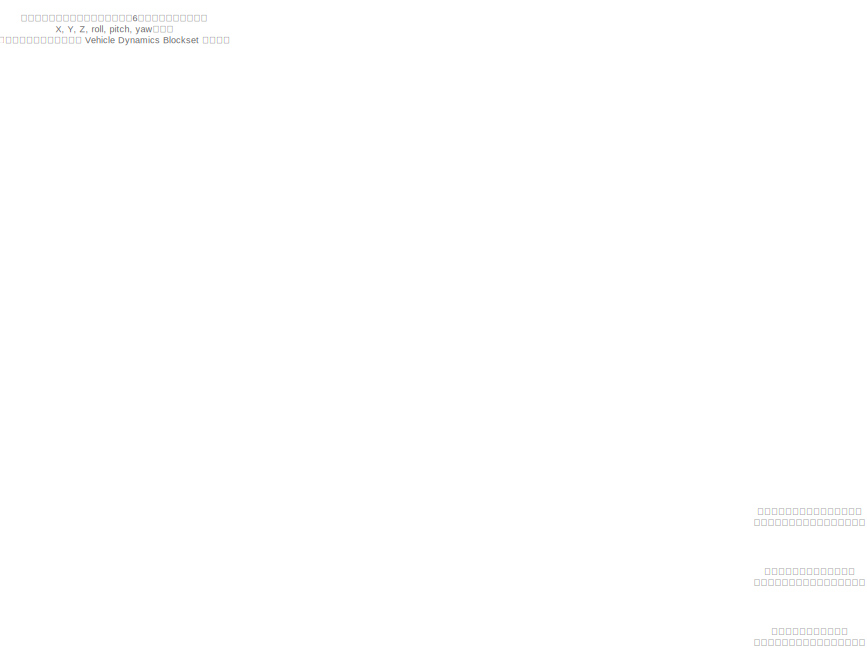
[diagram: root canvas - part 1/4, top left region]
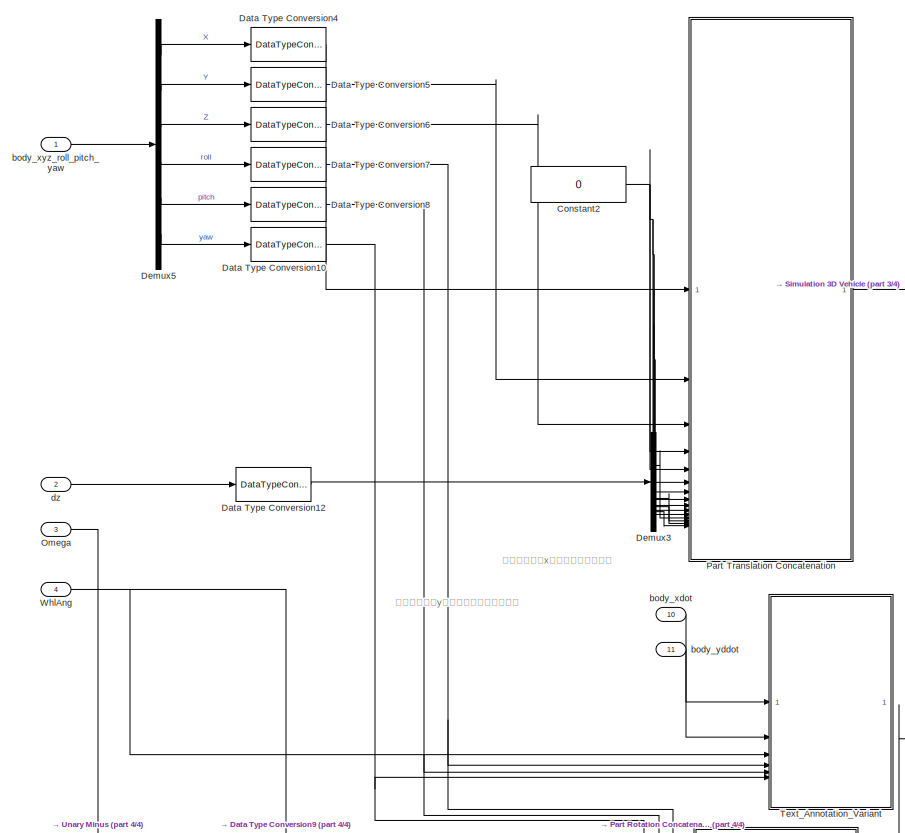
[diagram: root canvas - part 2/4, central region]
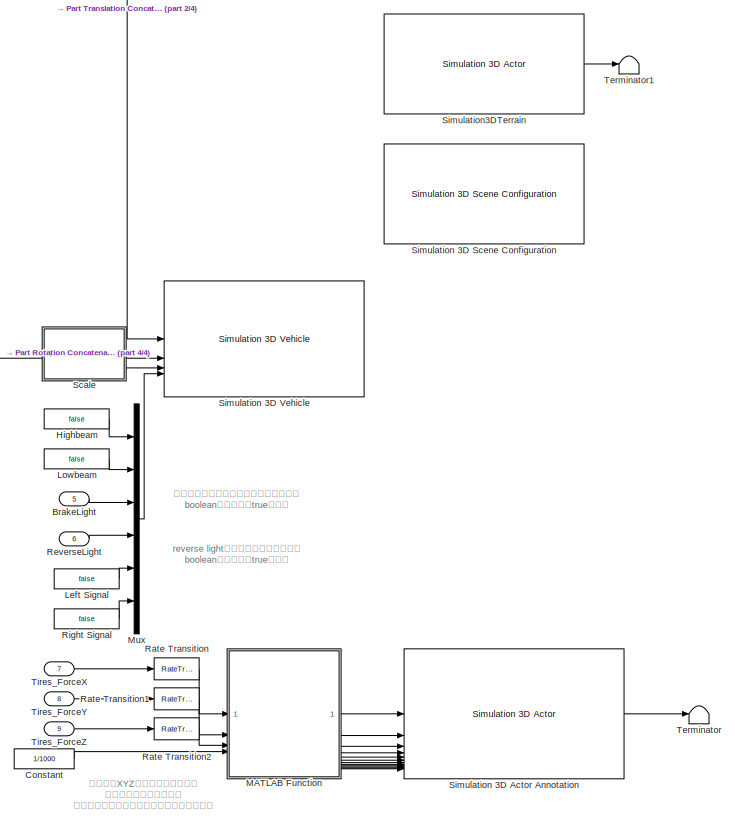
[diagram: root canvas - part 3/4, middle right region]
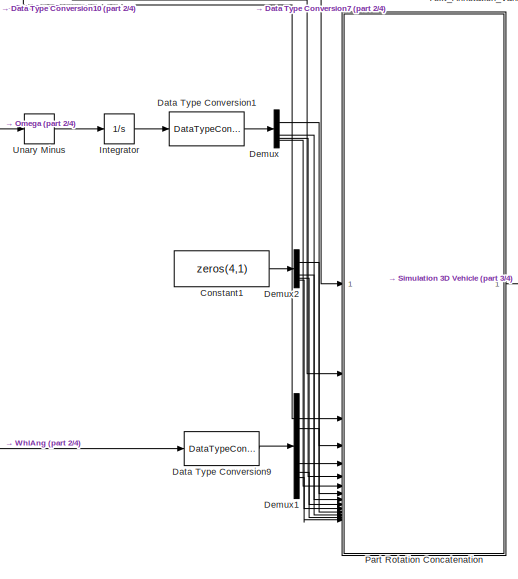
[diagram: root canvas - part 4/4, bottom center region]
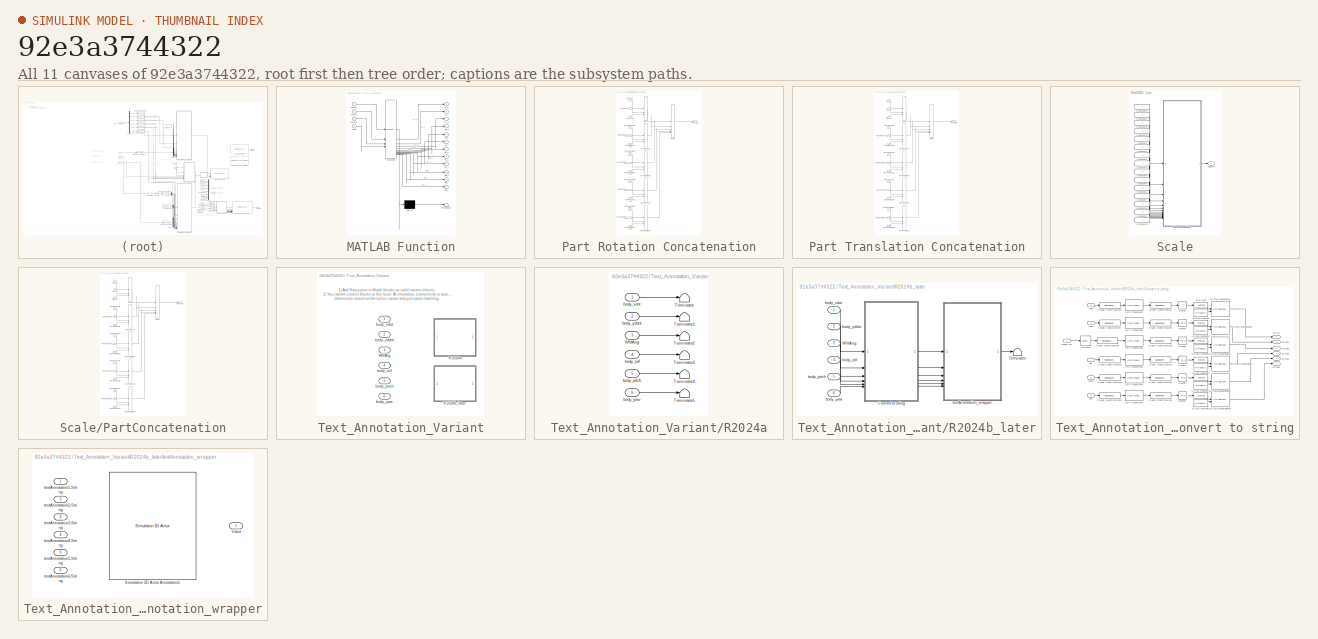
[diagram: thumbnail index - all 11 canvases of the model, root first then tree order]
MODEL slx_92e3a3744322
KIND model
CONFIG AbsTol = auto
CONFIG EnableMultiTasking = off
CONFIG FixedStep = timeStep
CONFIG MaxStep = auto
CONFIG MinStep = auto
CONFIG RelTol = 1e-3
CONFIG SampleTimeConstraint = Unconstrained
CONFIG SolverName = VariableStepAuto
CONFIG StartTime = 0
CONFIG StopTime = 20
BLOCK [Inport] BrakeLight
  OutDataTypeStr = boolean
  Port = 5
BLOCK [Constant] Constant
  Value = 1/1000
BLOCK [Constant] Constant1
  OutDataTypeStr = single
  Value = zeros(4,1)
BLOCK [Constant] Constant2
  OutDataTypeStr = single
  Value = 0
BLOCK [DataTypeConversion] Data Type Conversion1
  OutDataTypeStr = single
  RndMeth = Floor
  SaturateOnIntegerOverflow = off
BLOCK [DataTypeConversion] Data Type Conversion10
  OutDataTypeStr = single
  RndMeth = Floor
  SaturateOnIntegerOverflow = off
BLOCK [DataTypeConversion] Data Type Conversion12
  OutDataTypeStr = single
  RndMeth = Floor
  SaturateOnIntegerOverflow = off
BLOCK [DataTypeConversion] Data Type Conversion4
  OutDataTypeStr = single
  RndMeth = Floor
  SaturateOnIntegerOverflow = off
BLOCK [DataTypeConversion] Data Type Conversion5
  OutDataTypeStr = single
  RndMeth = Floor
  SaturateOnIntegerOverflow = off
BLOCK [DataTypeConversion] Data Type Conversion6
  OutDataTypeStr = single
  RndMeth = Floor
  SaturateOnIntegerOverflow = off
BLOCK [DataTypeConversion] Data Type Conversion7
  OutDataTypeStr = single
  RndMeth = Floor
  SaturateOnIntegerOverflow = off
BLOCK [DataTypeConversion] Data Type Conversion8
  OutDataTypeStr = single
  RndMeth = Floor
  SaturateOnIntegerOverflow = off
BLOCK [DataTypeConversion] Data Type Conversion9
  OutDataTypeStr = single
  RndMeth = Floor
  SaturateOnIntegerOverflow = off
BLOCK [Demux] Demux
BLOCK [Demux] Demux1
BLOCK [Demux] Demux2
BLOCK [Demux] Demux3
BLOCK [Demux] Demux5
  Outputs = 6
BLOCK [Constant] Highbeam
  Value = false
BLOCK [Integrator] Integrator
  WrapState = on
  WrappedStateLowerValue = 0
  WrappedStateUpperValue = 2*pi
  ZeroCross = off
BLOCK [Constant] Left Signal
  Value = false
BLOCK [Constant] Lowbeam
  Value = false
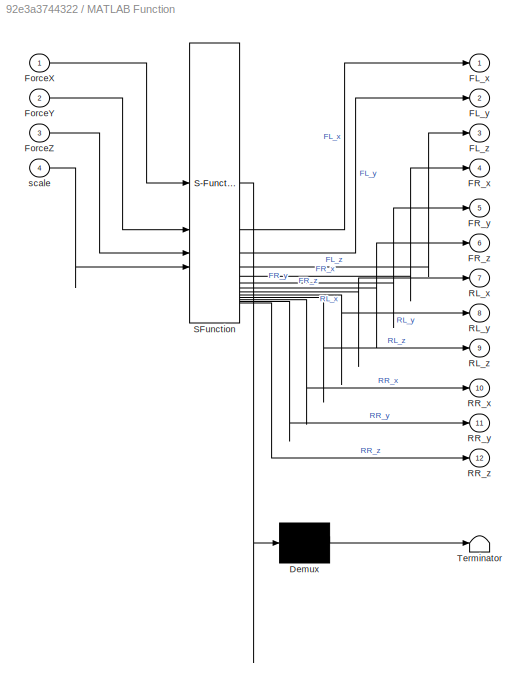
BLOCK [SubSystem] MATLAB Function
  ErrorFcn = Stateflow.Translate.translate
  PermitHierarchicalResolution = ExplicitOnly
  SFBlockType = MATLAB Function
  TreatAsAtomicUnit = on
BLOCK [Demux] MATLAB Function/ Demux 
  Outputs = 1
BLOCK [S-Function] MATLAB Function/ SFunction 
  EnableBusSupport = on
  FunctionName = sf_sfun
  PortCounts = [4 13]
  SFcnIsStateOwnerBlock = off
  SFunctionDeploymentMode = off
  Tag = Stateflow S-Function 2
BLOCK [Terminator] MATLAB Function/ Terminator 
BLOCK [Outport] MATLAB Function/FL_x
BLOCK [Outport] MATLAB Function/FL_y
  Port = 2
BLOCK [Outport] MATLAB Function/FL_z
  Port = 3
BLOCK [Outport] MATLAB Function/FR_x
  Port = 4
BLOCK [Outport] MATLAB Function/FR_y
  Port = 5
BLOCK [Outport] MATLAB Function/FR_z
  Port = 6
BLOCK [Inport] MATLAB Function/ForceX
BLOCK [Inport] MATLAB Function/ForceY
  Port = 2
BLOCK [Inport] MATLAB Function/ForceZ
  Port = 3
BLOCK [Outport] MATLAB Function/RL_x
  Port = 7
BLOCK [Outport] MATLAB Function/RL_y
  Port = 8
BLOCK [Outport] MATLAB Function/RL_z
  Port = 9
BLOCK [Outport] MATLAB Function/RR_x
  Port = 10
BLOCK [Outport] MATLAB Function/RR_y
  Port = 11
BLOCK [Outport] MATLAB Function/RR_z
  Port = 12
BLOCK [Inport] MATLAB Function/scale
  Port = 4
BLOCK [Mux] Mux
  DisplayOption = bar
  Inputs = 6
BLOCK [Inport] Omega
  OutDataTypeStr = double
  Port = 3
BLOCK [SubSystem] Part Rotation Concatenation
BLOCK [Concatenate] Part Rotation Concatenation/AllParts
  Mode = Multidimensional array
  NumInputs = 5
BLOCK [Concatenate] Part Rotation Concatenation/Body
  ConcatenateDimension = 2
  Mode = Multidimensional array
  NumInputs = 3
BLOCK [Inport] Part Rotation Concatenation/Body Ptich
  Port = 2
BLOCK [Inport] Part Rotation Concatenation/Body Roll
BLOCK [Inport] Part Rotation Concatenation/Body Yaw
  Port = 3
BLOCK [Outport] Part Rotation Concatenation/ConcatOut
  VectorParamsAs1DForOutWhenUnconnected = off
BLOCK [Concatenate] Part Rotation Concatenation/WheelFrontLeft
  ConcatenateDimension = 2
  Mode = Multidimensional array
  NumInputs = 3
BLOCK [Inport] Part Rotation Concatenation/WheelFrontLeft Pitch
  Port = 4
BLOCK [Inport] Part Rotation Concatenation/WheelFrontLeft Roll
  Port = 8
BLOCK [Inport] Part Rotation Concatenation/WheelFrontLeft Yaw
  Port = 12
BLOCK [Concatenate] Part Rotation Concatenation/WheelFrontRight
  ConcatenateDimension = 2
  Mode = Multidimensional array
  NumInputs = 3
BLOCK [Inport] Part Rotation Concatenation/WheelFrontRight Pitch
  Port = 5
BLOCK [Inport] Part Rotation Concatenation/WheelFrontRight Roll
  Port = 9
BLOCK [Inport] Part Rotation Concatenation/WheelFrontRight Yaw
  Port = 13
BLOCK [Concatenate] Part Rotation Concatenation/WheelRearLeft
  ConcatenateDimension = 2
  Mode = Multidimensional array
  NumInputs = 3
BLOCK [Inport] Part Rotation Concatenation/WheelRearLeft Pitch
  Port = 6
BLOCK [Inport] Part Rotation Concatenation/WheelRearLeft Roll
  Port = 10
BLOCK [Inport] Part Rotation Concatenation/WheelRearLeft Yaw
  Port = 14
BLOCK [Concatenate] Part Rotation Concatenation/WheelRearRight
  ConcatenateDimension = 2
  Mode = Multidimensional array
  NumInputs = 3
BLOCK [Inport] Part Rotation Concatenation/WheelRearRight Ptich
  Port = 7
BLOCK [Inport] Part Rotation Concatenation/WheelRearRight Roll
  Port = 11
BLOCK [Inport] Part Rotation Concatenation/WheelRearRight Yaw
  Port = 15
BLOCK [SubSystem] Part Translation Concatenation
BLOCK [Concatenate] Part Translation Concatenation/AllParts
  Mode = Multidimensional array
  NumInputs = 5
BLOCK [Concatenate] Part Translation Concatenation/Body
  ConcatenateDimension = 2
  Mode = Multidimensional array
  NumInputs = 3
BLOCK [Inport] Part Translation Concatenation/BodyX
BLOCK [Inport] Part Translation Concatenation/BodyY
  Port = 2
BLOCK [Inport] Part Translation Concatenation/BodyZ
  Port = 3
BLOCK [Outport] Part Translation Concatenation/ConcatOut
  VectorParamsAs1DForOutWhenUnconnected = off
BLOCK [Concatenate] Part Translation Concatenation/WheelFrontLeft
  ConcatenateDimension = 2
  Mode = Multidimensional array
  NumInputs = 3
BLOCK [Inport] Part Translation Concatenation/WheelFrontLeftX
  Port = 4
BLOCK [Inport] Part Translation Concatenation/WheelFrontLeftY
  Port = 8
BLOCK [Inport] Part Translation Concatenation/WheelFrontLeftZ
  Port = 12
BLOCK [Concatenate] Part Translation Concatenation/WheelFrontRight
  ConcatenateDimension = 2
  Mode = Multidimensional array
  NumInputs = 3
BLOCK [Inport] Part Translation Concatenation/WheelFrontRightX
  Port = 5
BLOCK [Inport] Part Translation Concatenation/WheelFrontRightY
  Port = 9
BLOCK [Inport] Part Translation Concatenation/WheelFrontRightZ
  Port = 13
BLOCK [Concatenate] Part Translation Concatenation/WheelRearLeft
  ConcatenateDimension = 2
  Mode = Multidimensional array
  NumInputs = 3
BLOCK [Inport] Part Translation Concatenation/WheelRearLeftX
  Port = 6
BLOCK [Inport] Part Translation Concatenation/WheelRearLeftY
  Port = 10
BLOCK [Inport] Part Translation Concatenation/WheelRearLeftZ
  Port = 14
BLOCK [Concatenate] Part Translation Concatenation/WheelRearRight
  ConcatenateDimension = 2
  Mode = Multidimensional array
  NumInputs = 3
BLOCK [Inport] Part Translation Concatenation/WheelRearRightX
  Port = 7
BLOCK [Inport] Part Translation Concatenation/WheelRearRightY
  Port = 11
BLOCK [Inport] Part Translation Concatenation/WheelRearRightZ
  Port = 15
BLOCK [RateTransition] Rate Transition
  OutPortSampleTime = 0.1
BLOCK [RateTransition] Rate Transition1
  OutPortSampleTime = 0.1
BLOCK [RateTransition] Rate Transition2
  OutPortSampleTime = 0.1
BLOCK [Inport] ReverseLight
  OutDataTypeStr = boolean
  Port = 6
BLOCK [Constant] Right Signal
  Value = false
BLOCK [SubSystem] Scale
BLOCK [Constant] Scale/Constant1
  OutDataTypeStr = single
BLOCK [Constant] Scale/Constant10
  OutDataTypeStr = single
BLOCK [Constant] Scale/Constant11
  OutDataTypeStr = single
BLOCK [Constant] Scale/Constant12
  OutDataTypeStr = single
BLOCK [Constant] Scale/Constant17
  OutDataTypeStr = single
BLOCK [Constant] Scale/Constant2
  OutDataTypeStr = single
BLOCK [Constant] Scale/Constant3
  OutDataTypeStr = single
BLOCK [Constant] Scale/Constant32
  OutDataTypeStr = single
BLOCK [Constant] Scale/Constant33
  OutDataTypeStr = single
BLOCK [Constant] Scale/Constant4
  OutDataTypeStr = single
BLOCK [Constant] Scale/Constant5
  OutDataTypeStr = single
BLOCK [Constant] Scale/Constant6
  OutDataTypeStr = single
BLOCK [Constant] Scale/Constant7
  OutDataTypeStr = single
BLOCK [Constant] Scale/Constant8
  OutDataTypeStr = single
BLOCK [Constant] Scale/Constant9
  OutDataTypeStr = single
BLOCK [SubSystem] Scale/PartConcatenation
BLOCK [Concatenate] Scale/PartConcatenation/AllParts
  Mode = Multidimensional array
  NumInputs = 5
BLOCK [Concatenate] Scale/PartConcatenation/Body
  ConcatenateDimension = 2
  Mode = Multidimensional array
  NumInputs = 3
BLOCK [Inport] Scale/PartConcatenation/BodyX
BLOCK [Inport] Scale/PartConcatenation/BodyY
  Port = 2
BLOCK [Inport] Scale/PartConcatenation/BodyZ
  Port = 3
BLOCK [Outport] Scale/PartConcatenation/ConcatOut
  VectorParamsAs1DForOutWhenUnconnected = off
BLOCK [Concatenate] Scale/PartConcatenation/WheelFrontLeft
  ConcatenateDimension = 2
  Mode = Multidimensional array
  NumInputs = 3
BLOCK [Inport] Scale/PartConcatenation/WheelFrontLeftX
  Port = 4
BLOCK [Inport] Scale/PartConcatenation/WheelFrontLeftY
  Port = 5
BLOCK [Inport] Scale/PartConcatenation/WheelFrontLeftZ
  Port = 6
BLOCK [Concatenate] Scale/PartConcatenation/WheelFrontRight
  ConcatenateDimension = 2
  Mode = Multidimensional array
  NumInputs = 3
BLOCK [Inport] Scale/PartConcatenation/WheelFrontRightX
  Port = 7
BLOCK [Inport] Scale/PartConcatenation/WheelFrontRightY
  Port = 8
BLOCK [Inport] Scale/PartConcatenation/WheelFrontRightZ
  Port = 9
BLOCK [Concatenate] Scale/PartConcatenation/WheelRearLeft
  ConcatenateDimension = 2
  Mode = Multidimensional array
  NumInputs = 3
BLOCK [Inport] Scale/PartConcatenation/WheelRearLeftX
  Port = 10
BLOCK [Inport] Scale/PartConcatenation/WheelRearLeftY
  Port = 11
BLOCK [Inport] Scale/PartConcatenation/WheelRearLeftZ
  Port = 12
BLOCK [Concatenate] Scale/PartConcatenation/WheelRearRight
  ConcatenateDimension = 2
  Mode = Multidimensional array
  NumInputs = 3
BLOCK [Inport] Scale/PartConcatenation/WheelRearRightX
  Port = 13
BLOCK [Inport] Scale/PartConcatenation/WheelRearRightY
  Port = 14
BLOCK [Inport] Scale/PartConcatenation/WheelRearRightZ
  Port = 15
BLOCK [Outport] Scale/ScaleOut
  VectorParamsAs1DForOutWhenUnconnected = off
BLOCK [Reference] Simulation 3D Actor Annotation  REF=sim3dlib/Simulation 3D Actor
  Priority = 1
  SourceBlock = sim3dlib/Simulation 3D Actor
  SourceType = Simulation 3D Actor
BLOCK [Reference] Simulation 3D Scene Configuration  REF=sim3dlib/Simulation 3D Scene Configuration
  LibrarySourceBlock = sl3dlib/Simulation 3D/Simulation 3D Scene Configuration
  Priority = 0
  SourceBlock = sim3dlib/Simulation 3D Scene Configuration
  SourceType = Simulation 3D Scene Configuration
BLOCK [Reference] Simulation 3D Vehicle  REF=sim3dautolib/Simulation 3D Vehicle
  Priority = -1
  SourceBlock = sim3dautolib/Simulation 3D Vehicle
  SourceType = Simulation 3D Vehicle
BLOCK [Reference] Simulation3DTerrain  REF=sim3dlib/Simulation 3D Actor
  LibrarySourceBlock = sl3dlib/Simulation 3D/Actors/Simulation 3D Actor
  Priority = 1
  SourceBlock = sim3dlib/Simulation 3D Actor
  SourceType = Simulation 3D Actor
BLOCK [Terminator] Terminator
BLOCK [Terminator] Terminator1
BLOCK [SubSystem] Text_Annotation_Variant
  Priority = 1
  Variant = on
BLOCK [SubSystem] Text_Annotation_Variant/R2024a
  VariantControl = str2num(ver('simulink').Version) <= 24.1
BLOCK [Terminator] Text_Annotation_Variant/R2024a/Terminator
BLOCK [Terminator] Text_Annotation_Variant/R2024a/Terminator1
BLOCK [Terminator] Text_Annotation_Variant/R2024a/Terminator2
BLOCK [Terminator] Text_Annotation_Variant/R2024a/Terminator3
BLOCK [Terminator] Text_Annotation_Variant/R2024a/Terminator4
BLOCK [Terminator] Text_Annotation_Variant/R2024a/Terminator5
BLOCK [Inport] Text_Annotation_Variant/R2024a/WhlAng
  Port = 3
BLOCK [Inport] Text_Annotation_Variant/R2024a/body_pitch
  Port = 5
BLOCK [Inport] Text_Annotation_Variant/R2024a/body_roll
  Port = 4
BLOCK [Inport] Text_Annotation_Variant/R2024a/body_xdot
BLOCK [Inport] Text_Annotation_Variant/R2024a/body_yaw
  Port = 6
BLOCK [Inport] Text_Annotation_Variant/R2024a/body_yddot
  Port = 2
BLOCK [SubSystem] Text_Annotation_Variant/R2024b_later
  VariantControl = str2num(ver('simulink').Version) > 24.1
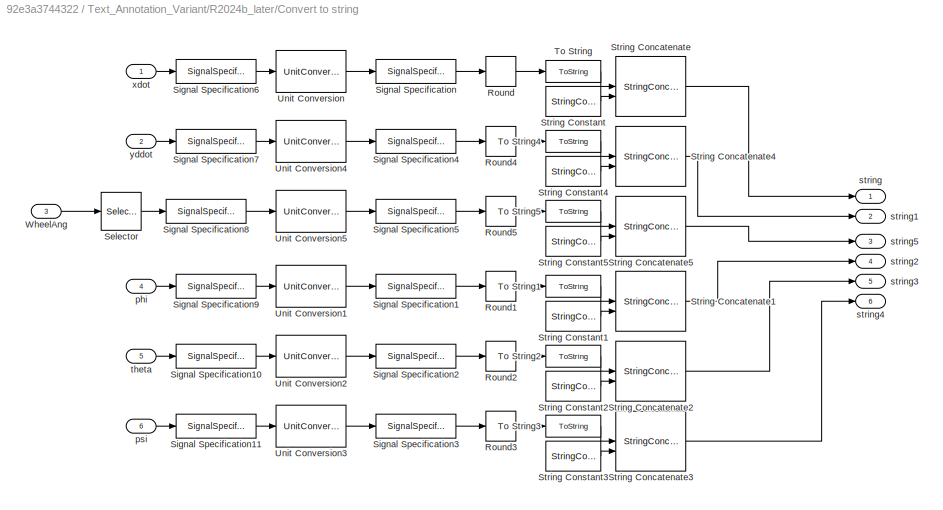
BLOCK [SubSystem] Text_Annotation_Variant/R2024b_later/Convert to string
BLOCK [Rounding] Text_Annotation_Variant/R2024b_later/Convert to string/Round
  Operator = round
BLOCK [Rounding] Text_Annotation_Variant/R2024b_later/Convert to string/Round1
  Operator = round
BLOCK [Rounding] Text_Annotation_Variant/R2024b_later/Convert to string/Round2
  Operator = round
BLOCK [Rounding] Text_Annotation_Variant/R2024b_later/Convert to string/Round3
  Operator = round
BLOCK [Rounding] Text_Annotation_Variant/R2024b_later/Convert to string/Round4
  Operator = round
BLOCK [Rounding] Text_Annotation_Variant/R2024b_later/Convert to string/Round5
  Operator = round
BLOCK [Selector] Text_Annotation_Variant/R2024b_later/Convert to string/Selector
  IndexOptions = Index vector (dialog)
  Indices = [1]
  InputPortWidth = 4
  OutputSizes = 1
BLOCK [SignalSpecification] Text_Annotation_Variant/R2024b_later/Convert to string/Signal Specification
  Unit = km/h
BLOCK [SignalSpecification] Text_Annotation_Variant/R2024b_later/Convert to string/Signal Specification1
  Unit = deg
BLOCK [SignalSpecification] Text_Annotation_Variant/R2024b_later/Convert to string/Signal Specification10
  Unit = rad
BLOCK [SignalSpecification] Text_Annotation_Variant/R2024b_later/Convert to string/Signal Specification11
  Unit = rad
BLOCK [SignalSpecification] Text_Annotation_Variant/R2024b_later/Convert to string/Signal Specification2
  Unit = deg
BLOCK [SignalSpecification] Text_Annotation_Variant/R2024b_later/Convert to string/Signal Specification3
  Unit = deg
BLOCK [SignalSpecification] Text_Annotation_Variant/R2024b_later/Convert to string/Signal Specification4
  Unit = m/s^2
BLOCK [SignalSpecification] Text_Annotation_Variant/R2024b_later/Convert to string/Signal Specification5
  Unit = deg
BLOCK [SignalSpecification] Text_Annotation_Variant/R2024b_later/Convert to string/Signal Specification6
  Unit = m/s
BLOCK [SignalSpecification] Text_Annotation_Variant/R2024b_later/Convert to string/Signal Specification7
  Unit = m/s^2
BLOCK [SignalSpecification] Text_Annotation_Variant/R2024b_later/Convert to string/Signal Specification8
  Unit = rad
BLOCK [SignalSpecification] Text_Annotation_Variant/R2024b_later/Convert to string/Signal Specification9
  Unit = rad
BLOCK [StringConcatenate] Text_Annotation_Variant/R2024b_later/Convert to string/String Concatenate
BLOCK [StringConcatenate] Text_Annotation_Variant/R2024b_later/Convert to string/String Concatenate1
BLOCK [StringConcatenate] Text_Annotation_Variant/R2024b_later/Convert to string/String Concatenate2
BLOCK [StringConcatenate] Text_Annotation_Variant/R2024b_later/Convert to string/String Concatenate3
BLOCK [StringConcatenate] Text_Annotation_Variant/R2024b_later/Convert to string/String Concatenate4
BLOCK [StringConcatenate] Text_Annotation_Variant/R2024b_later/Convert to string/String Concatenate5
BLOCK [StringConstant] Text_Annotation_Variant/R2024b_later/Convert to string/String Constant
  String = " km/h"
BLOCK [StringConstant] Text_Annotation_Variant/R2024b_later/Convert to string/String Constant1
  String = " deg"
BLOCK [StringConstant] Text_Annotation_Variant/R2024b_later/Convert to string/String Constant2
  String = " deg"
BLOCK [StringConstant] Text_Annotation_Variant/R2024b_later/Convert to string/String Constant3
  String = " deg"
BLOCK [StringConstant] Text_Annotation_Variant/R2024b_later/Convert to string/String Constant4
  String = " m/s^2"
BLOCK [StringConstant] Text_Annotation_Variant/R2024b_later/Convert to string/String Constant5
  String = " deg"
BLOCK [ToString] Text_Annotation_Variant/R2024b_later/Convert to string/To String
BLOCK [ToString] Text_Annotation_Variant/R2024b_later/Convert to string/To String1
BLOCK [ToString] Text_Annotation_Variant/R2024b_later/Convert to string/To String2
BLOCK [ToString] Text_Annotation_Variant/R2024b_later/Convert to string/To String3
BLOCK [ToString] Text_Annotation_Variant/R2024b_later/Convert to string/To String4
BLOCK [ToString] Text_Annotation_Variant/R2024b_later/Convert to string/To String5
BLOCK [UnitConversion] Text_Annotation_Variant/R2024b_later/Convert to string/Unit Conversion
BLOCK [UnitConversion] Text_Annotation_Variant/R2024b_later/Convert to string/Unit Conversion1
BLOCK [UnitConversion] Text_Annotation_Variant/R2024b_later/Convert to string/Unit Conversion2
BLOCK [UnitConversion] Text_Annotation_Variant/R2024b_later/Convert to string/Unit Conversion3
BLOCK [UnitConversion] Text_Annotation_Variant/R2024b_later/Convert to string/Unit Conversion4
BLOCK [UnitConversion] Text_Annotation_Variant/R2024b_later/Convert to string/Unit Conversion5
BLOCK [Inport] Text_Annotation_Variant/R2024b_later/Convert to string/WheelAng
  Port = 3
BLOCK [Inport] Text_Annotation_Variant/R2024b_later/Convert to string/phi
  Port = 4
BLOCK [Inport] Text_Annotation_Variant/R2024b_later/Convert to string/psi
  Port = 6
BLOCK [Outport] Text_Annotation_Variant/R2024b_later/Convert to string/string
BLOCK [Outport] Text_Annotation_Variant/R2024b_later/Convert to string/string1
  Port = 2
BLOCK [Outport] Text_Annotation_Variant/R2024b_later/Convert to string/string2
  Port = 4
BLOCK [Outport] Text_Annotation_Variant/R2024b_later/Convert to string/string3
  Port = 5
BLOCK [Outport] Text_Annotation_Variant/R2024b_later/Convert to string/string4
  Port = 6
BLOCK [Outport] Text_Annotation_Variant/R2024b_later/Convert to string/string5
  Port = 3
BLOCK [Inport] Text_Annotation_Variant/R2024b_later/Convert to string/theta
  Port = 5
BLOCK [Inport] Text_Annotation_Variant/R2024b_later/Convert to string/xdot
BLOCK [Inport] Text_Annotation_Variant/R2024b_later/Convert to string/yddot
  Port = 2
BLOCK [Terminator] Text_Annotation_Variant/R2024b_later/Terminator
BLOCK [Inport] Text_Annotation_Variant/R2024b_later/WhlAng
  Port = 3
BLOCK [Inport] Text_Annotation_Variant/R2024b_later/body_pitch
  Port = 5
BLOCK [Inport] Text_Annotation_Variant/R2024b_later/body_roll
  Port = 4
BLOCK [Inport] Text_Annotation_Variant/R2024b_later/body_xdot
BLOCK [Inport] Text_Annotation_Variant/R2024b_later/body_yaw
  Port = 6
BLOCK [Inport] Text_Annotation_Variant/R2024b_later/body_yddot
  Port = 2
BLOCK [SubSystem] Text_Annotation_Variant/R2024b_later/textAnnotation_wrapper
  AllowZeroVariantControls = on
  Priority = 1
  Variant = on
BLOCK [Reference] Text_Annotation_Variant/R2024b_later/textAnnotation_wrapper/Simulation 3D Actor Annotation1  REF=sim3dlib/Simulation 3D Actor
  Priority = 1
  SourceBlock = sim3dlib/Simulation 3D Actor
  SourceType = Simulation 3D Actor
BLOCK [Outport] Text_Annotation_Variant/R2024b_later/textAnnotation_wrapper/Valid
BLOCK [Inport] Text_Annotation_Variant/R2024b_later/textAnnotation_wrapper/textAnnotation1.String
BLOCK [Inport] Text_Annotation_Variant/R2024b_later/textAnnotation_wrapper/textAnnotation2.String
  Port = 2
BLOCK [Inport] Text_Annotation_Variant/R2024b_later/textAnnotation_wrapper/textAnnotation3.String
  Port = 3
BLOCK [Inport] Text_Annotation_Variant/R2024b_later/textAnnotation_wrapper/textAnnotation4.String
  Port = 4
BLOCK [Inport] Text_Annotation_Variant/R2024b_later/textAnnotation_wrapper/textAnnotation5.String
  Port = 5
BLOCK [Inport] Text_Annotation_Variant/R2024b_later/textAnnotation_wrapper/textAnnotation6.String
  Port = 6
BLOCK [Inport] Text_Annotation_Variant/WhlAng
  Port = 3
BLOCK [Inport] Text_Annotation_Variant/body_pitch
  Port = 5
BLOCK [Inport] Text_Annotation_Variant/body_roll
  Port = 4
BLOCK [Inport] Text_Annotation_Variant/body_xdot
BLOCK [Inport] Text_Annotation_Variant/body_yaw
  Port = 6
BLOCK [Inport] Text_Annotation_Variant/body_yddot
  Port = 2
BLOCK [Inport] Tires_ForceX
  OutDataTypeStr = single
  Port = 7
  PortDimensions = 4
BLOCK [Inport] Tires_ForceY
  OutDataTypeStr = single
  Port = 8
  PortDimensions = 4
BLOCK [Inport] Tires_ForceZ
  OutDataTypeStr = single
  Port = 9
  PortDimensions = 4
BLOCK [UnaryMinus] Unary Minus
BLOCK [Inport] WhlAng
  OutDataTypeStr = single
  Port = 4
BLOCK [Inport] body_xdot
  OutDataTypeStr = single
  Port = 10
BLOCK [Inport] body_xyz_roll_pitch_yaw
  OutDataTypeStr = single
BLOCK [Inport] body_yddot
  OutDataTypeStr = single
  Port = 11
BLOCK [Inport] dz
  OutDataTypeStr = single
  Port = 2
ANNOTATION (root): 車両ボデーの位置と姿勢をまとめた6次元のベクトルを入力 X, Y, Z, roll, pitch, yawの順番 座標系は下記のため、注意 Vehicle Dynamics Blockset の座標系
ANNOTATION (root): reverse lightを点灯させるかのフラグ booleanで入力し、trueで点灯
ANNOTATION (root): タイヤのXYZそれぞれの力の入力 矢印による可視化に使用 左前、右前、左後ろ、右後ろの順に４つずつ
ANNOTATION (root): タイヤの初期値からの上下移動量 左前。右前、左後ろ、右後ろの順番
ANNOTATION (root): タイヤの操舵方向回転角 左前。右前、左後ろ、右後ろの順番
ANNOTATION (root): タイヤの進行方向回転角速度 左前。右前、左後ろ、右後ろの順番
ANNOTATION (root): ブレーキライトを点灯させるかのフラグ booleanで入力し、trueで点灯
ANNOTATION (root): 車両ボデーのx方向速度（縦速度）
ANNOTATION (root): 車両ボデーのy方向加速度（横加速度）
ANNOTATION Text_Annotation_Variant: 1) Add Subsystem or Model blocks as valid variant choices. 2) You cannot connect blocks at this level. At simulation, connectivity is automatically determined, based on the active variant and port name matching.
LINE BrakeLight:1 -> Mux:3
LINE Constant1:1 -> Demux2:1
NET Constant2:1 -> Part Translation Concatenation:10, Part Translation Concatenation:11, Part Translation Concatenation:4, Part Translation Concatenation:5, Part Translation Concatenation:6, Part Translation Concatenation:7, Part Translation Concatenation:8, Part Translation Concatenation:9
LINE Constant:1 -> MATLAB Function:4
NET Data Type Conversion10:1 -> Part Rotation Concatenation:3, Text_Annotation_Variant:6
LINE Data Type Conversion12:1 -> Demux3:1
LINE Data Type Conversion1:1 -> Demux:1
LINE Data Type Conversion4:1 -> Part Translation Concatenation:1
LINE Data Type Conversion5:1 -> Part Translation Concatenation:2
LINE Data Type Conversion6:1 -> Part Translation Concatenation:3
NET Data Type Conversion7:1 -> Part Rotation Concatenation:1, Text_Annotation_Variant:4
NET Data Type Conversion8:1 -> Part Rotation Concatenation:2, Text_Annotation_Variant:5
LINE Data Type Conversion9:1 -> Demux1:1
LINE Demux1:1 -> Part Rotation Concatenation:12
LINE Demux1:2 -> Part Rotation Concatenation:13
LINE Demux1:3 -> Part Rotation Concatenation:14
LINE Demux1:4 -> Part Rotation Concatenation:15
LINE Demux2:1 -> Part Rotation Concatenation:8
LINE Demux2:2 -> Part Rotation Concatenation:9
LINE Demux2:3 -> Part Rotation Concatenation:10
LINE Demux2:4 -> Part Rotation Concatenation:11
LINE Demux3:1 -> Part Translation Concatenation:12
LINE Demux3:2 -> Part Translation Concatenation:13
LINE Demux3:3 -> Part Translation Concatenation:14
LINE Demux3:4 -> Part Translation Concatenation:15
LINE Demux5:1 -> Data Type Conversion4:1
LINE Demux5:2 -> Data Type Conversion5:1
LINE Demux5:3 -> Data Type Conversion6:1
LINE Demux5:4 -> Data Type Conversion7:1
LINE Demux5:5 -> Data Type Conversion8:1
LINE Demux5:6 -> Data Type Conversion10:1
LINE Demux:1 -> Part Rotation Concatenation:4
LINE Demux:2 -> Part Rotation Concatenation:5
LINE Demux:3 -> Part Rotation Concatenation:6
LINE Demux:4 -> Part Rotation Concatenation:7
LINE Highbeam:1 -> Mux:1
LINE Integrator:1 -> Data Type Conversion1:1
LINE Left Signal:1 -> Mux:5
LINE Lowbeam:1 -> Mux:2
LINE MATLAB Function:1 -> Simulation 3D Actor Annotation:1
LINE MATLAB Function:10 -> Simulation 3D Actor Annotation:10
LINE MATLAB Function:11 -> Simulation 3D Actor Annotation:11
LINE MATLAB Function:12 -> Simulation 3D Actor Annotation:12
LINE MATLAB Function:2 -> Simulation 3D Actor Annotation:2
LINE MATLAB Function:3 -> Simulation 3D Actor Annotation:3
LINE MATLAB Function:4 -> Simulation 3D Actor Annotation:4
LINE MATLAB Function:5 -> Simulation 3D Actor Annotation:5
LINE MATLAB Function:6 -> Simulation 3D Actor Annotation:6
LINE MATLAB Function:7 -> Simulation 3D Actor Annotation:7
LINE MATLAB Function:8 -> Simulation 3D Actor Annotation:8
LINE MATLAB Function:9 -> Simulation 3D Actor Annotation:9
LINE Mux:1 -> Simulation 3D Vehicle:4
LINE Omega:1 -> Unary Minus:1
LINE Part Rotation Concatenation/AllParts:1 -> Part Rotation Concatenation/ConcatOut:1
LINE Part Rotation Concatenation/Body Ptich:1 -> Part Rotation Concatenation/Body:2
LINE Part Rotation Concatenation/Body Roll:1 -> Part Rotation Concatenation/Body:1
LINE Part Rotation Concatenation/Body Yaw:1 -> Part Rotation Concatenation/Body:3
LINE Part Rotation Concatenation/Body:1 -> Part Rotation Concatenation/AllParts:1
LINE Part Rotation Concatenation/WheelFrontLeft Pitch:1 -> Part Rotation Concatenation/WheelFrontLeft:2
LINE Part Rotation Concatenation/WheelFrontLeft Roll:1 -> Part Rotation Concatenation/WheelFrontLeft:1
LINE Part Rotation Concatenation/WheelFrontLeft Yaw:1 -> Part Rotation Concatenation/WheelFrontLeft:3
LINE Part Rotation Concatenation/WheelFrontLeft:1 -> Part Rotation Concatenation/AllParts:2
LINE Part Rotation Concatenation/WheelFrontRight Pitch:1 -> Part Rotation Concatenation/WheelFrontRight:2
LINE Part Rotation Concatenation/WheelFrontRight Roll:1 -> Part Rotation Concatenation/WheelFrontRight:1
LINE Part Rotation Concatenation/WheelFrontRight Yaw:1 -> Part Rotation Concatenation/WheelFrontRight:3
LINE Part Rotation Concatenation/WheelFrontRight:1 -> Part Rotation Concatenation/AllParts:3
LINE Part Rotation Concatenation/WheelRearLeft Pitch:1 -> Part Rotation Concatenation/WheelRearLeft:2
LINE Part Rotation Concatenation/WheelRearLeft Roll:1 -> Part Rotation Concatenation/WheelRearLeft:1
LINE Part Rotation Concatenation/WheelRearLeft Yaw:1 -> Part Rotation Concatenation/WheelRearLeft:3
LINE Part Rotation Concatenation/WheelRearLeft:1 -> Part Rotation Concatenation/AllParts:4
LINE Part Rotation Concatenation/WheelRearRight Ptich:1 -> Part Rotation Concatenation/WheelRearRight:2
LINE Part Rotation Concatenation/WheelRearRight Roll:1 -> Part Rotation Concatenation/WheelRearRight:1
LINE Part Rotation Concatenation/WheelRearRight Yaw:1 -> Part Rotation Concatenation/WheelRearRight:3
LINE Part Rotation Concatenation/WheelRearRight:1 -> Part Rotation Concatenation/AllParts:5
LINE Part Rotation Concatenation:1 -> Simulation 3D Vehicle:2
LINE Part Translation Concatenation/AllParts:1 -> Part Translation Concatenation/ConcatOut:1
LINE Part Translation Concatenation/Body:1 -> Part Translation Concatenation/AllParts:1
LINE Part Translation Concatenation/BodyX:1 -> Part Translation Concatenation/Body:1
LINE Part Translation Concatenation/BodyY:1 -> Part Translation Concatenation/Body:2
LINE Part Translation Concatenation/BodyZ:1 -> Part Translation Concatenation/Body:3
LINE Part Translation Concatenation/WheelFrontLeft:1 -> Part Translation Concatenation/AllParts:2
LINE Part Translation Concatenation/WheelFrontLeftX:1 -> Part Translation Concatenation/WheelFrontLeft:1
LINE Part Translation Concatenation/WheelFrontLeftY:1 -> Part Translation Concatenation/WheelFrontLeft:2
LINE Part Translation Concatenation/WheelFrontLeftZ:1 -> Part Translation Concatenation/WheelFrontLeft:3
LINE Part Translation Concatenation/WheelFrontRight:1 -> Part Translation Concatenation/AllParts:3
LINE Part Translation Concatenation/WheelFrontRightX:1 -> Part Translation Concatenation/WheelFrontRight:1
LINE Part Translation Concatenation/WheelFrontRightY:1 -> Part Translation Concatenation/WheelFrontRight:2
LINE Part Translation Concatenation/WheelFrontRightZ:1 -> Part Translation Concatenation/WheelFrontRight:3
LINE Part Translation Concatenation/WheelRearLeft:1 -> Part Translation Concatenation/AllParts:4
LINE Part Translation Concatenation/WheelRearLeftX:1 -> Part Translation Concatenation/WheelRearLeft:1
LINE Part Translation Concatenation/WheelRearLeftY:1 -> Part Translation Concatenation/WheelRearLeft:2
LINE Part Translation Concatenation/WheelRearLeftZ:1 -> Part Translation Concatenation/WheelRearLeft:3
LINE Part Translation Concatenation/WheelRearRight:1 -> Part Translation Concatenation/AllParts:5
LINE Part Translation Concatenation/WheelRearRightX:1 -> Part Translation Concatenation/WheelRearRight:1
LINE Part Translation Concatenation/WheelRearRightY:1 -> Part Translation Concatenation/WheelRearRight:2
LINE Part Translation Concatenation/WheelRearRightZ:1 -> Part Translation Concatenation/WheelRearRight:3
LINE Part Translation Concatenation:1 -> Simulation 3D Vehicle:1
LINE Rate Transition1:1 -> MATLAB Function:2
LINE Rate Transition2:1 -> MATLAB Function:3
LINE Rate Transition:1 -> MATLAB Function:1
LINE ReverseLight:1 -> Mux:4
LINE Right Signal:1 -> Mux:6
LINE Scale/Constant10:1 -> Scale/PartConcatenation:15
LINE Scale/Constant11:1 -> Scale/PartConcatenation:13
LINE Scale/Constant12:1 -> Scale/PartConcatenation:1
LINE Scale/Constant17:1 -> Scale/PartConcatenation:2
LINE Scale/Constant1:1 -> Scale/PartConcatenation:5
LINE Scale/Constant2:1 -> Scale/PartConcatenation:6
LINE Scale/Constant32:1 -> Scale/PartConcatenation:3
LINE Scale/Constant33:1 -> Scale/PartConcatenation:4
LINE Scale/Constant3:1 -> Scale/PartConcatenation:8
LINE Scale/Constant4:1 -> Scale/PartConcatenation:9
LINE Scale/Constant5:1 -> Scale/PartConcatenation:7
LINE Scale/Constant6:1 -> Scale/PartConcatenation:11
LINE Scale/Constant7:1 -> Scale/PartConcatenation:12
LINE Scale/Constant8:1 -> Scale/PartConcatenation:10
LINE Scale/Constant9:1 -> Scale/PartConcatenation:14
LINE Scale/PartConcatenation/AllParts:1 -> Scale/PartConcatenation/ConcatOut:1
LINE Scale/PartConcatenation/Body:1 -> Scale/PartConcatenation/AllParts:1
LINE Scale/PartConcatenation/BodyX:1 -> Scale/PartConcatenation/Body:1
LINE Scale/PartConcatenation/BodyY:1 -> Scale/PartConcatenation/Body:2
LINE Scale/PartConcatenation/BodyZ:1 -> Scale/PartConcatenation/Body:3
LINE Scale/PartConcatenation/WheelFrontLeft:1 -> Scale/PartConcatenation/AllParts:2
LINE Scale/PartConcatenation/WheelFrontLeftX:1 -> Scale/PartConcatenation/WheelFrontLeft:1
LINE Scale/PartConcatenation/WheelFrontLeftY:1 -> Scale/PartConcatenation/WheelFrontLeft:2
LINE Scale/PartConcatenation/WheelFrontLeftZ:1 -> Scale/PartConcatenation/WheelFrontLeft:3
LINE Scale/PartConcatenation/WheelFrontRight:1 -> Scale/PartConcatenation/AllParts:3
LINE Scale/PartConcatenation/WheelFrontRightX:1 -> Scale/PartConcatenation/WheelFrontRight:1
LINE Scale/PartConcatenation/WheelFrontRightY:1 -> Scale/PartConcatenation/WheelFrontRight:2
LINE Scale/PartConcatenation/WheelFrontRightZ:1 -> Scale/PartConcatenation/WheelFrontRight:3
LINE Scale/PartConcatenation/WheelRearLeft:1 -> Scale/PartConcatenation/AllParts:4
LINE Scale/PartConcatenation/WheelRearLeftX:1 -> Scale/PartConcatenation/WheelRearLeft:1
LINE Scale/PartConcatenation/WheelRearLeftY:1 -> Scale/PartConcatenation/WheelRearLeft:2
LINE Scale/PartConcatenation/WheelRearLeftZ:1 -> Scale/PartConcatenation/WheelRearLeft:3
LINE Scale/PartConcatenation/WheelRearRight:1 -> Scale/PartConcatenation/AllParts:5
LINE Scale/PartConcatenation/WheelRearRightX:1 -> Scale/PartConcatenation/WheelRearRight:1
LINE Scale/PartConcatenation/WheelRearRightY:1 -> Scale/PartConcatenation/WheelRearRight:2
LINE Scale/PartConcatenation/WheelRearRightZ:1 -> Scale/PartConcatenation/WheelRearRight:3
LINE Scale/PartConcatenation:1 -> Scale/ScaleOut:1
LINE Scale:1 -> Simulation 3D Vehicle:3
LINE Simulation 3D Actor Annotation:1 -> Terminator:1
LINE Simulation3DTerrain:1 -> Terminator1:1
LINE Text_Annotation_Variant/R2024a/WhlAng:1 -> Text_Annotation_Variant/R2024a/Terminator2:1
LINE Text_Annotation_Variant/R2024a/body_pitch:1 -> Text_Annotation_Variant/R2024a/Terminator4:1
LINE Text_Annotation_Variant/R2024a/body_roll:1 -> Text_Annotation_Variant/R2024a/Terminator3:1
LINE Text_Annotation_Variant/R2024a/body_xdot:1 -> Text_Annotation_Variant/R2024a/Terminator:1
LINE Text_Annotation_Variant/R2024a/body_yaw:1 -> Text_Annotation_Variant/R2024a/Terminator5:1
LINE Text_Annotation_Variant/R2024a/body_yddot:1 -> Text_Annotation_Variant/R2024a/Terminator1:1
LINE Text_Annotation_Variant/R2024b_later/Convert to string/Round1:1 -> Text_Annotation_Variant/R2024b_later/Convert to string/To String1:1
LINE Text_Annotation_Variant/R2024b_later/Convert to string/Round2:1 -> Text_Annotation_Variant/R2024b_later/Convert to string/To String2:1
LINE Text_Annotation_Variant/R2024b_later/Convert to string/Round3:1 -> Text_Annotation_Variant/R2024b_later/Convert to string/To String3:1
LINE Text_Annotation_Variant/R2024b_later/Convert to string/Round4:1 -> Text_Annotation_Variant/R2024b_later/Convert to string/To String4:1
LINE Text_Annotation_Variant/R2024b_later/Convert to string/Round5:1 -> Text_Annotation_Variant/R2024b_later/Convert to string/To String5:1
LINE Text_Annotation_Variant/R2024b_later/Convert to string/Round:1 -> Text_Annotation_Variant/R2024b_later/Convert to string/To String:1
LINE Text_Annotation_Variant/R2024b_later/Convert to string/Selector:1 -> Text_Annotation_Variant/R2024b_later/Convert to string/Signal Specification8:1
LINE Text_Annotation_Variant/R2024b_later/Convert to string/Signal Specification10:1 -> Text_Annotation_Variant/R2024b_later/Convert to string/Unit Conversion2:1
LINE Text_Annotation_Variant/R2024b_later/Convert to string/Signal Specification11:1 -> Text_Annotation_Variant/R2024b_later/Convert to string/Unit Conversion3:1
LINE Text_Annotation_Variant/R2024b_later/Convert to string/Signal Specification1:1 -> Text_Annotation_Variant/R2024b_later/Convert to string/Round1:1
LINE Text_Annotation_Variant/R2024b_later/Convert to string/Signal Specification2:1 -> Text_Annotation_Variant/R2024b_later/Convert to string/Round2:1
LINE Text_Annotation_Variant/R2024b_later/Convert to string/Signal Specification3:1 -> Text_Annotation_Variant/R2024b_later/Convert to string/Round3:1
LINE Text_Annotation_Variant/R2024b_later/Convert to string/Signal Specification4:1 -> Text_Annotation_Variant/R2024b_later/Convert to string/Round4:1
LINE Text_Annotation_Variant/R2024b_later/Convert to string/Signal Specification5:1 -> Text_Annotation_Variant/R2024b_later/Convert to string/Round5:1
LINE Text_Annotation_Variant/R2024b_later/Convert to string/Signal Specification6:1 -> Text_Annotation_Variant/R2024b_later/Convert to string/Unit Conversion:1
LINE Text_Annotation_Variant/R2024b_later/Convert to string/Signal Specification7:1 -> Text_Annotation_Variant/R2024b_later/Convert to string/Unit Conversion4:1
LINE Text_Annotation_Variant/R2024b_later/Convert to string/Signal Specification8:1 -> Text_Annotation_Variant/R2024b_later/Convert to string/Unit Conversion5:1
LINE Text_Annotation_Variant/R2024b_later/Convert to string/Signal Specification9:1 -> Text_Annotation_Variant/R2024b_later/Convert to string/Unit Conversion1:1
LINE Text_Annotation_Variant/R2024b_later/Convert to string/Signal Specification:1 -> Text_Annotation_Variant/R2024b_later/Convert to string/Round:1
LINE Text_Annotation_Variant/R2024b_later/Convert to string/String Concatenate1:1 -> Text_Annotation_Variant/R2024b_later/Convert to string/string2:1
LINE Text_Annotation_Variant/R2024b_later/Convert to string/String Concatenate2:1 -> Text_Annotation_Variant/R2024b_later/Convert to string/string3:1
LINE Text_Annotation_Variant/R2024b_later/Convert to string/String Concatenate3:1 -> Text_Annotation_Variant/R2024b_later/Convert to string/string4:1
LINE Text_Annotation_Variant/R2024b_later/Convert to string/String Concatenate4:1 -> Text_Annotation_Variant/R2024b_later/Convert to string/string1:1
LINE Text_Annotation_Variant/R2024b_later/Convert to string/String Concatenate5:1 -> Text_Annotation_Variant/R2024b_later/Convert to string/string5:1
LINE Text_Annotation_Variant/R2024b_later/Convert to string/String Concatenate:1 -> Text_Annotation_Variant/R2024b_later/Convert to string/string:1
LINE Text_Annotation_Variant/R2024b_later/Convert to string/String Constant1:1 -> Text_Annotation_Variant/R2024b_later/Convert to string/String Concatenate1:2
LINE Text_Annotation_Variant/R2024b_later/Convert to string/String Constant2:1 -> Text_Annotation_Variant/R2024b_later/Convert to string/String Concatenate2:2
LINE Text_Annotation_Variant/R2024b_later/Convert to string/String Constant3:1 -> Text_Annotation_Variant/R2024b_later/Convert to string/String Concatenate3:2
LINE Text_Annotation_Variant/R2024b_later/Convert to string/String Constant4:1 -> Text_Annotation_Variant/R2024b_later/Convert to string/String Concatenate4:2
LINE Text_Annotation_Variant/R2024b_later/Convert to string/String Constant5:1 -> Text_Annotation_Variant/R2024b_later/Convert to string/String Concatenate5:2
LINE Text_Annotation_Variant/R2024b_later/Convert to string/String Constant:1 -> Text_Annotation_Variant/R2024b_later/Convert to string/String Concatenate:2
LINE Text_Annotation_Variant/R2024b_later/Convert to string/To String1:1 -> Text_Annotation_Variant/R2024b_later/Convert to string/String Concatenate1:1
LINE Text_Annotation_Variant/R2024b_later/Convert to string/To String2:1 -> Text_Annotation_Variant/R2024b_later/Convert to string/String Concatenate2:1
LINE Text_Annotation_Variant/R2024b_later/Convert to string/To String3:1 -> Text_Annotation_Variant/R2024b_later/Convert to string/String Concatenate3:1
LINE Text_Annotation_Variant/R2024b_later/Convert to string/To String4:1 -> Text_Annotation_Variant/R2024b_later/Convert to string/String Concatenate4:1
LINE Text_Annotation_Variant/R2024b_later/Convert to string/To String5:1 -> Text_Annotation_Variant/R2024b_later/Convert to string/String Concatenate5:1
LINE Text_Annotation_Variant/R2024b_later/Convert to string/To String:1 -> Text_Annotation_Variant/R2024b_later/Convert to string/String Concatenate:1
LINE Text_Annotation_Variant/R2024b_later/Convert to string/Unit Conversion1:1 -> Text_Annotation_Variant/R2024b_later/Convert to string/Signal Specification1:1
LINE Text_Annotation_Variant/R2024b_later/Convert to string/Unit Conversion2:1 -> Text_Annotation_Variant/R2024b_later/Convert to string/Signal Specification2:1
LINE Text_Annotation_Variant/R2024b_later/Convert to string/Unit Conversion3:1 -> Text_Annotation_Variant/R2024b_later/Convert to string/Signal Specification3:1
LINE Text_Annotation_Variant/R2024b_later/Convert to string/Unit Conversion4:1 -> Text_Annotation_Variant/R2024b_later/Convert to string/Signal Specification4:1
LINE Text_Annotation_Variant/R2024b_later/Convert to string/Unit Conversion5:1 -> Text_Annotation_Variant/R2024b_later/Convert to string/Signal Specification5:1
LINE Text_Annotation_Variant/R2024b_later/Convert to string/Unit Conversion:1 -> Text_Annotation_Variant/R2024b_later/Convert to string/Signal Specification:1
LINE Text_Annotation_Variant/R2024b_later/Convert to string/WheelAng:1 -> Text_Annotation_Variant/R2024b_later/Convert to string/Selector:1
LINE Text_Annotation_Variant/R2024b_later/Convert to string/phi:1 -> Text_Annotation_Variant/R2024b_later/Convert to string/Signal Specification9:1
LINE Text_Annotation_Variant/R2024b_later/Convert to string/psi:1 -> Text_Annotation_Variant/R2024b_later/Convert to string/Signal Specification11:1
LINE Text_Annotation_Variant/R2024b_later/Convert to string/theta:1 -> Text_Annotation_Variant/R2024b_later/Convert to string/Signal Specification10:1
LINE Text_Annotation_Variant/R2024b_later/Convert to string/xdot:1 -> Text_Annotation_Variant/R2024b_later/Convert to string/Signal Specification6:1
LINE Text_Annotation_Variant/R2024b_later/Convert to string/yddot:1 -> Text_Annotation_Variant/R2024b_later/Convert to string/Signal Specification7:1
LINE Text_Annotation_Variant/R2024b_later/Convert to string:1 -> Text_Annotation_Variant/R2024b_later/textAnnotation_wrapper:1
LINE Text_Annotation_Variant/R2024b_later/Convert to string:2 -> Text_Annotation_Variant/R2024b_later/textAnnotation_wrapper:2
LINE Text_Annotation_Variant/R2024b_later/Convert to string:3 -> Text_Annotation_Variant/R2024b_later/textAnnotation_wrapper:3
LINE Text_Annotation_Variant/R2024b_later/Convert to string:4 -> Text_Annotation_Variant/R2024b_later/textAnnotation_wrapper:4
LINE Text_Annotation_Variant/R2024b_later/Convert to string:5 -> Text_Annotation_Variant/R2024b_later/textAnnotation_wrapper:5
LINE Text_Annotation_Variant/R2024b_later/Convert to string:6 -> Text_Annotation_Variant/R2024b_later/textAnnotation_wrapper:6
LINE Text_Annotation_Variant/R2024b_later/WhlAng:1 -> Text_Annotation_Variant/R2024b_later/Convert to string:3
LINE Text_Annotation_Variant/R2024b_later/body_pitch:1 -> Text_Annotation_Variant/R2024b_later/Convert to string:5
LINE Text_Annotation_Variant/R2024b_later/body_roll:1 -> Text_Annotation_Variant/R2024b_later/Convert to string:4
LINE Text_Annotation_Variant/R2024b_later/body_xdot:1 -> Text_Annotation_Variant/R2024b_later/Convert to string:1
LINE Text_Annotation_Variant/R2024b_later/body_yaw:1 -> Text_Annotation_Variant/R2024b_later/Convert to string:6
LINE Text_Annotation_Variant/R2024b_later/body_yddot:1 -> Text_Annotation_Variant/R2024b_later/Convert to string:2
LINE Text_Annotation_Variant/R2024b_later/textAnnotation_wrapper:1 -> Text_Annotation_Variant/R2024b_later/Terminator:1
LINE Tires_ForceX:1 -> Rate Transition:1
LINE Tires_ForceY:1 -> Rate Transition1:1
LINE Tires_ForceZ:1 -> Rate Transition2:1
LINE Unary Minus:1 -> Integrator:1
NET WhlAng:1 -> Data Type Conversion9:1, Text_Annotation_Variant:3
LINE body_xdot:1 -> Text_Annotation_Variant:1
LINE body_xyz_roll_pitch_yaw:1 -> Demux5:1
LINE body_yddot:1 -> Text_Annotation_Variant:2
LINE dz:1 -> Data Type Conversion12:1
note: NET lines group one-source signal fan-out (src -> all destinations, sorted); 1:1 wires keep LINE
CHART MATLAB Function states=1 transitions=1
  STATE_LABEL 'eML_blk_kernel()'
  STATE_LABEL 'SCRIPT:\nfunction [FL_x, FL_y, FL_z, FR_x, FR_y, FR_z,...\n    RL_x, RL_y, RL_z, RR_x, RR_y, RR_z] = fcn(ForceX, ForceY, ForceZ, scale)\n\nFL_x = [ForceX(1)*scale, 2, 2];\nFL_y = [ForceY(1)*scale, 2, 2];\nFL_z = [ForceZ(1)*scale, 2, 2];\n\nFR_x = [ForceX(2)*scale, 2, 2];\nFR_y = [ForceY(2)*scale, 2, 2];\nFR_z = [ForceZ(2)*scale, 2, 2];\n\nRL_x = [ForceX(3)*scale, 2, 2];\nRL_y = [ForceY(3)*scale, 2, 2];\nRL_z = ...<+122ch>'
CHART  states=0 transitions=0
